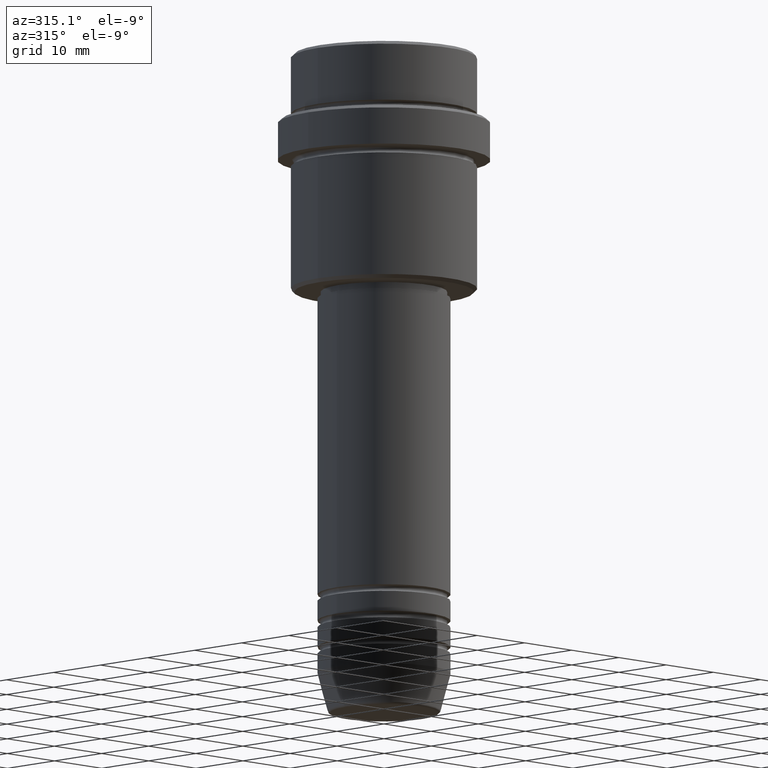
[diagram: clean part render]
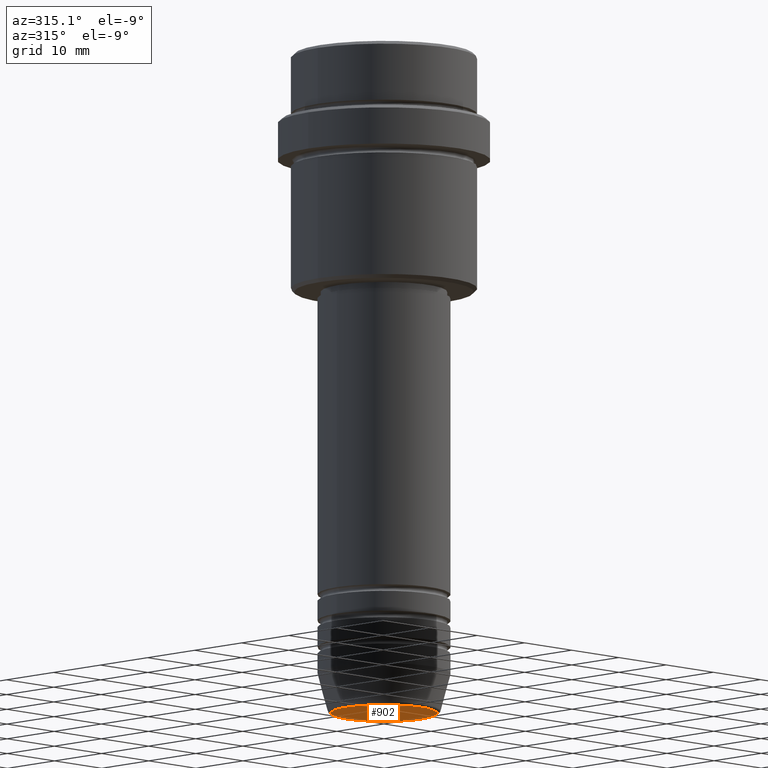
[diagram: same view with one face highlighted and labeled with its STEP entity id]
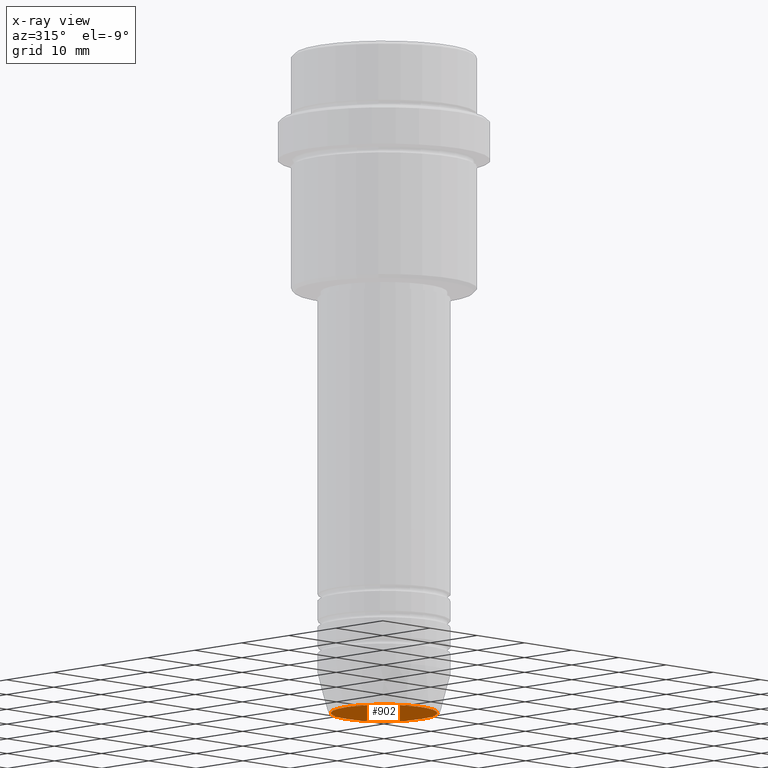
[diagram: x-ray of the same camera — body ghosted, the highlighted face saturated]
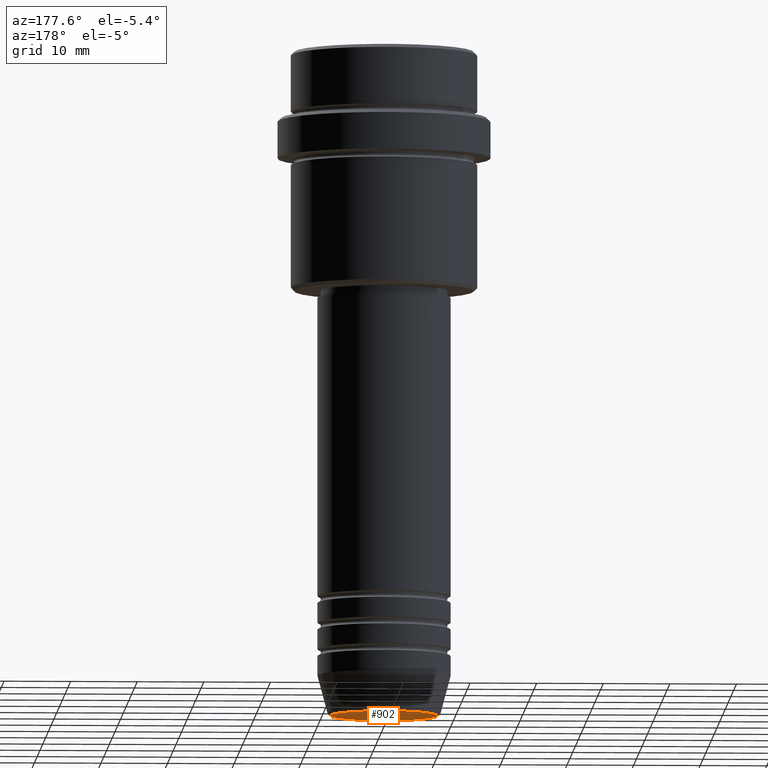
[diagram: same view with one face highlighted and labeled with its STEP entity id]
A machine part, auxiliary view. The second image highlights one B-rep face of the part: STEP entity #902.
The next image is the same camera in x-ray: the body ghosted, the highlighted face saturated — about 0% of this face is hidden behind the body in this view.
A second angle (auxiliary view) of the same face is appended — the face is thin or edge-on in the first view.
In plain terms, the highlighted planar face has unit normal (0, -0, 1).
Its self-contained STEP definition (entity closure, byte-faithful):
#21 = EDGE_LOOP ( 'NONE', ( #1036, #851 ) ) ;
#231 = AXIS2_PLACEMENT_3D ( 'NONE', #487, #1135, #397 ) ;
#264 = DIRECTION ( 'NONE',  ( 1.000000000000000000, 0.000000000000000000, 0.000000000000000000 ) ) ;
#273 = DIRECTION ( 'NONE',  ( 0.000000000000000000, 0.000000000000000000, -1.000000000000000000 ) ) ;
#356 = DIRECTION ( 'NONE',  ( 1.000000000000000000, 0.000000000000000000, 0.000000000000000000 ) ) ;
#397 = DIRECTION ( 'NONE',  ( 1.000000000000000000, 0.000000000000000000, 0.000000000000000000 ) ) ;
#411 = VERTEX_POINT ( 'NONE', #969 ) ;
#461 = DIRECTION ( 'NONE',  ( 0.000000000000000000, -0.000000000000000000, 1.000000000000000000 ) ) ;
#477 = CARTESIAN_POINT ( 'NONE',  ( 8.008641351423779753, 0.000000000000000000, -100.0000000000000000 ) ) ;
#487 = CARTESIAN_POINT ( 'NONE',  ( 0.000000000000000000, 0.000000000000000000, -100.0000000000000000 ) ) ;
#562 = FACE_OUTER_BOUND ( 'NONE', #21, .T. ) ;
#589 = CARTESIAN_POINT ( 'NONE',  ( 0.000000000000000000, 0.000000000000000000, -100.0000000000000000 ) ) ;
#609 = EDGE_CURVE ( 'NONE', #411, #638, #619, .T. ) ;
#619 = CIRCLE ( 'NONE', #708, 8.008641351423779753 ) ;
#638 = VERTEX_POINT ( 'NONE', #477 ) ;
#669 = EDGE_CURVE ( 'NONE', #638, #411, #802, .T. ) ;
#708 = AXIS2_PLACEMENT_3D ( 'NONE', #1061, #273, #264 ) ;
#802 = CIRCLE ( 'NONE', #231, 8.008641351423779753 ) ;
#851 = ORIENTED_EDGE ( 'NONE', *, *, #609, .T. ) ;
#902 = ADVANCED_FACE ( 'NONE', ( #562 ), #1136, .F. ) ;
#969 = CARTESIAN_POINT ( 'NONE',  ( -8.008641351423779753, 1.010348648938493172E-15, -100.0000000000000000 ) ) ;
#1036 = ORIENTED_EDGE ( 'NONE', *, *, #669, .T. ) ;
#1061 = CARTESIAN_POINT ( 'NONE',  ( 0.000000000000000000, 0.000000000000000000, -100.0000000000000000 ) ) ;
#1135 = DIRECTION ( 'NONE',  ( 0.000000000000000000, 0.000000000000000000, -1.000000000000000000 ) ) ;
#1136 = PLANE ( 'NONE',  #1148 ) ;
#1148 = AXIS2_PLACEMENT_3D ( 'NONE', #589, #461, #356 ) ;